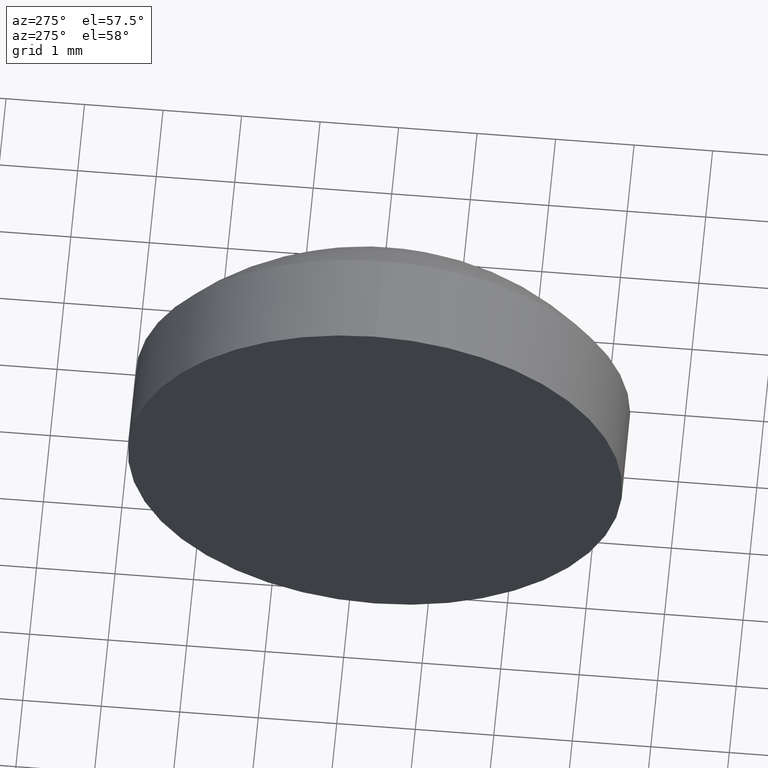
[diagram: clean part render]
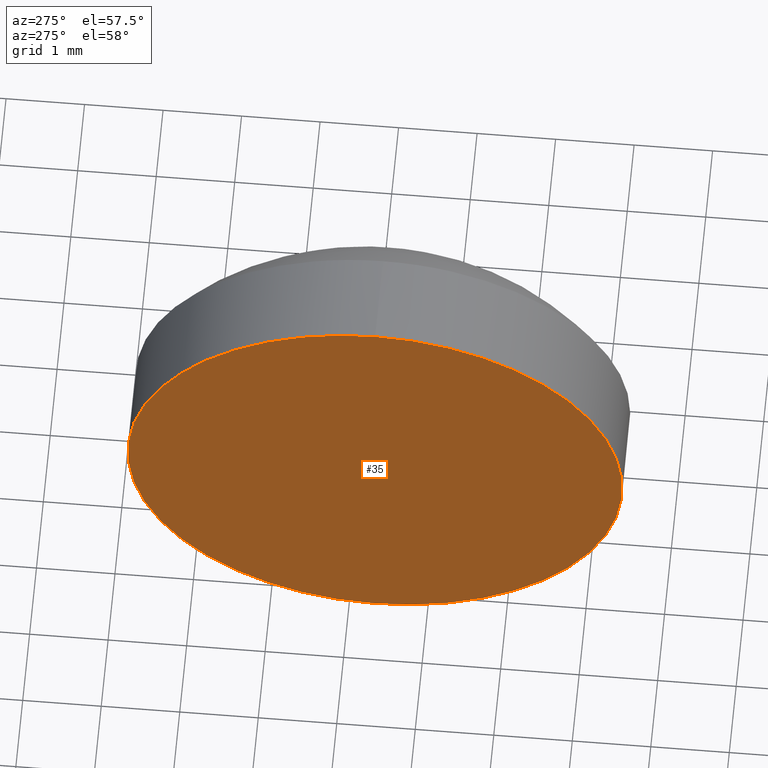
[diagram: same view with one face highlighted and labeled with its STEP entity id]
A machine part, auxiliary view. The second image highlights one B-rep face of the part: STEP entity #35.
In plain terms, the highlighted planar face has unit normal (1, 0, 0).
Its self-contained STEP definition (entity closure, byte-faithful):
#16 = VERTEX_POINT ( 'NONE', #143 ) ;
#35 = ADVANCED_FACE ( 'NONE', ( #151 ), #85, .F. ) ;
#51 = AXIS2_PLACEMENT_3D ( 'NONE', #58, #74, #178 ) ;
#55 = DIRECTION ( 'NONE',  ( -1.000000000000000000, -0.0000000000000000000, -0.0000000000000000000 ) ) ;
#58 = CARTESIAN_POINT ( 'NONE',  ( 395.7541318018416000, -5.334423510750469600, 0.0000000000000000000 ) ) ;
#63 = ORIENTED_EDGE ( 'NONE', *, *, #150, .T. ) ;
#74 = DIRECTION ( 'NONE',  ( 1.000000000000000000, 0.0000000000000000000, 0.0000000000000000000 ) ) ;
#76 = CARTESIAN_POINT ( 'NONE',  ( 395.7541318018416000, -5.334423510750469600, 3.149999999999999900 ) ) ;
#80 = CIRCLE ( 'NONE', #101, 3.149999999999999900 ) ;
#85 = PLANE ( 'NONE',  #51 ) ;
#93 = EDGE_LOOP ( 'NONE', ( #100, #63 ) ) ;
#97 = VERTEX_POINT ( 'NONE', #76 ) ;
#100 = ORIENTED_EDGE ( 'NONE', *, *, #158, .T. ) ;
#101 = AXIS2_PLACEMENT_3D ( 'NONE', #129, #55, #179 ) ;
#110 = AXIS2_PLACEMENT_3D ( 'NONE', #175, #118, #126 ) ;
#118 = DIRECTION ( 'NONE',  ( -1.000000000000000000, -0.0000000000000000000, -0.0000000000000000000 ) ) ;
#126 = DIRECTION ( 'NONE',  ( 0.0000000000000000000, 0.0000000000000000000, 1.000000000000000000 ) ) ;
#129 = CARTESIAN_POINT ( 'NONE',  ( 395.7541318018416000, -5.334423510750469600, 0.0000000000000000000 ) ) ;
#143 = CARTESIAN_POINT ( 'NONE',  ( 395.7541318018416000, -5.334423510750469600, -3.149999999999999900 ) ) ;
#150 = EDGE_CURVE ( 'NONE', #16, #97, #183, .T. ) ;
#151 = FACE_OUTER_BOUND ( 'NONE', #93, .T. ) ;
#158 = EDGE_CURVE ( 'NONE', #97, #16, #80, .T. ) ;
#175 = CARTESIAN_POINT ( 'NONE',  ( 395.7541318018416000, -5.334423510750469600, 0.0000000000000000000 ) ) ;
#178 = DIRECTION ( 'NONE',  ( 0.0000000000000000000, 0.0000000000000000000, -1.000000000000000000 ) ) ;
#179 = DIRECTION ( 'NONE',  ( 0.0000000000000000000, 0.0000000000000000000, 1.000000000000000000 ) ) ;
#183 = CIRCLE ( 'NONE', #110, 3.149999999999999900 ) ;